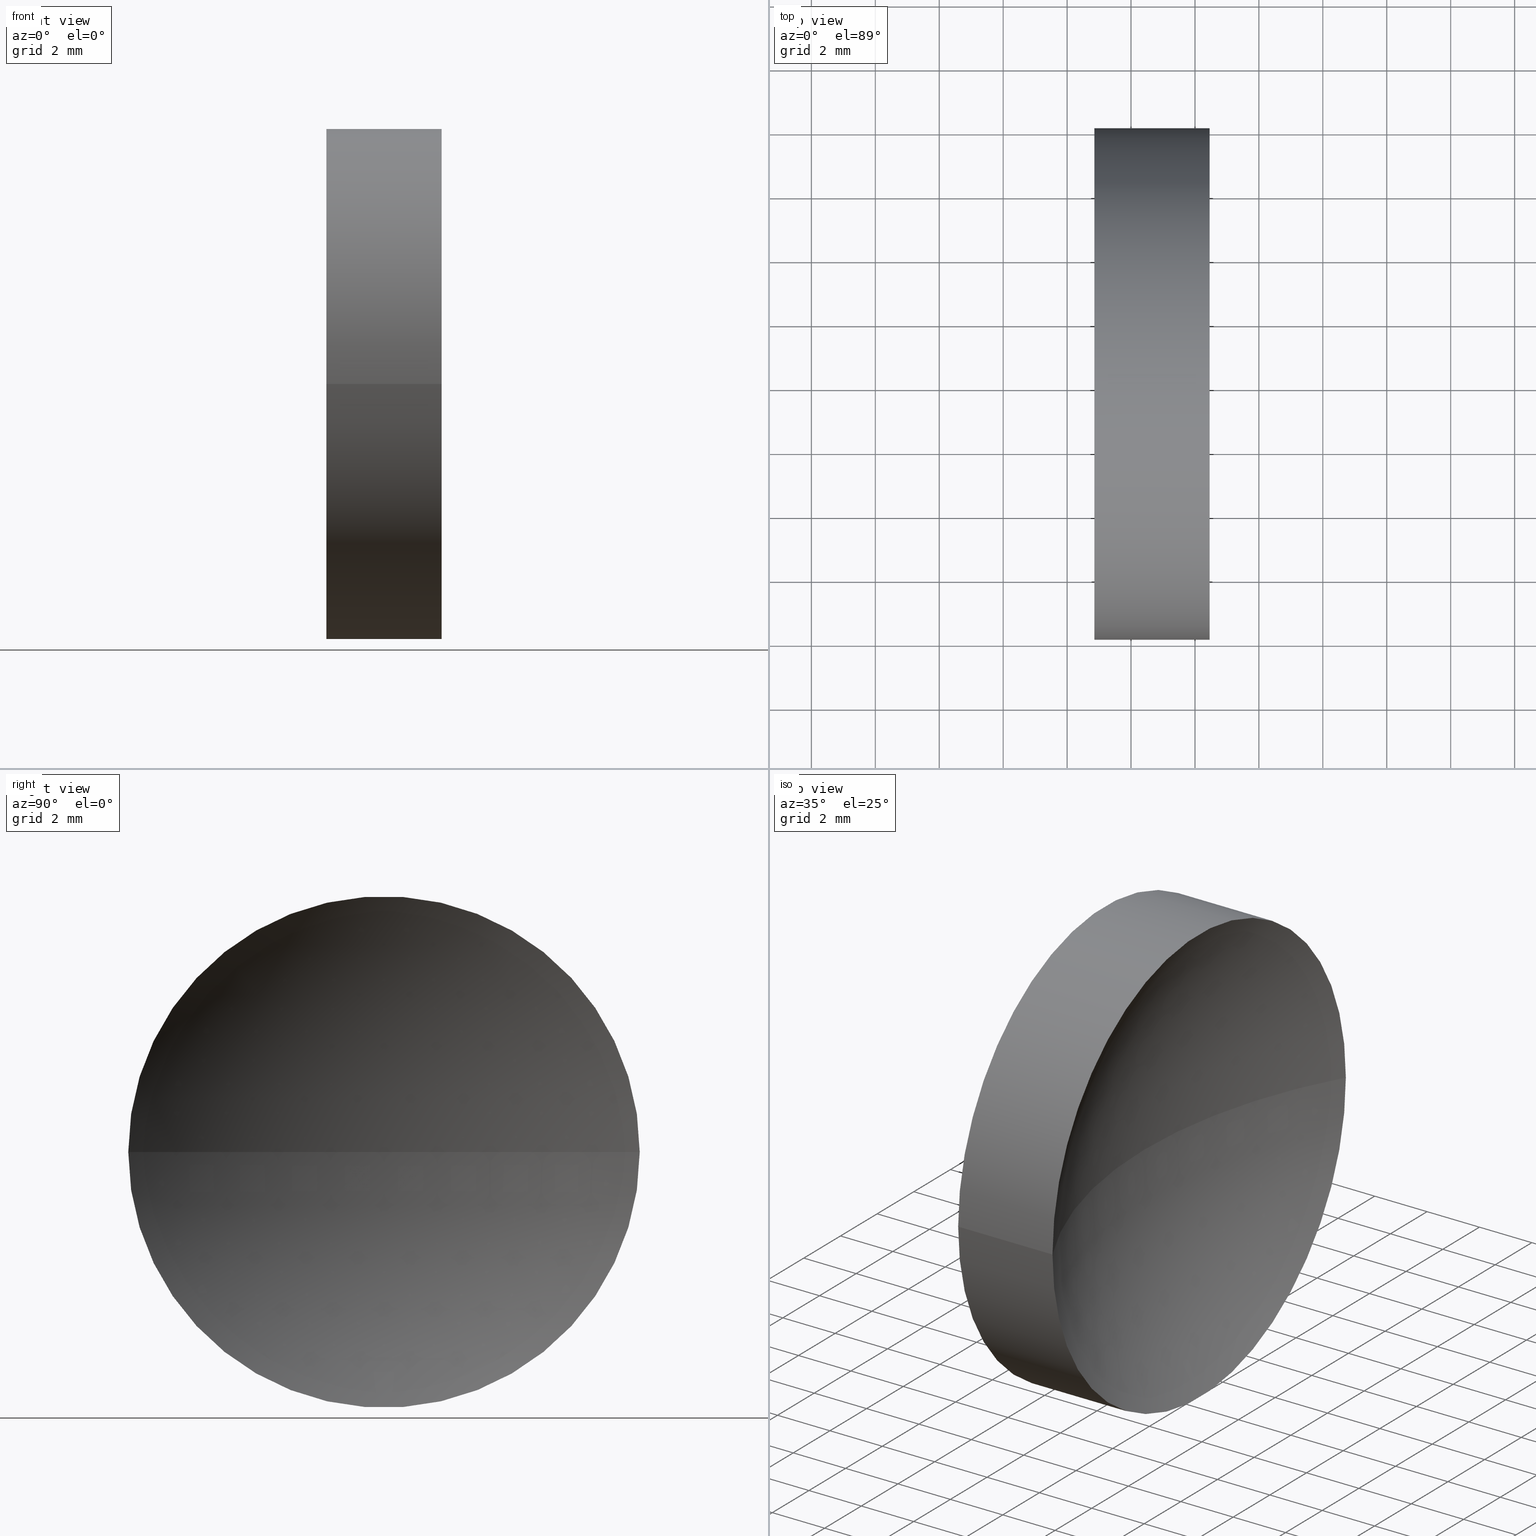
[diagram: canonical four-view strip — front | top / right | iso, engineering-drawing reading convention]
A machine part, canonical four-view strip (front | top / right | iso — engineering-drawing reading convention). The complete STEP part file that produces these views, byte-faithful:
ISO-10303-21;
HEADER;
FILE_DESCRIPTION (( 'STEP AP214' ),
    '1' );
FILE_NAME ('120141.STEP',
    '2019-06-20T01:14:32',
    ( '' ),
    ( '' ),
    'SwSTEP 2.0',
    'SolidWorks 2016',
    '' );
FILE_SCHEMA (( 'AUTOMOTIVE_DESIGN' ));
ENDSEC;

DATA;
#1 = EDGE_CURVE ( 'NONE', #91, #118, #116, .T. ) ;
#2 = PRODUCT_DEFINITION_FORMATION_WITH_SPECIFIED_SOURCE ( '�κ�', '', #19, .NOT_KNOWN. ) ;
#3 = CIRCLE ( 'NONE', #92, 8.000000000000003600 ) ;
#4 = PRESENTATION_LAYER_ASSIGNMENT (  '', '', ( #52 ) ) ;
#5 = CYLINDRICAL_SURFACE ( 'NONE', #82, 8.000000000000000000 ) ;
#6 = EDGE_LOOP ( 'NONE', ( #73, #148, #156 ) ) ;
#7 = MECHANICAL_DESIGN_GEOMETRIC_PRESENTATION_REPRESENTATION (  '', ( #52 ), #23 ) ;
#8 = DIRECTION ( 'NONE',  ( -1.000000000000000000, 4.058245434298766700E-016, -0.0000000000000000000 ) ) ;
#9 = APPLICATION_CONTEXT ( 'automotive_design' ) ;
#10 =( NAMED_UNIT ( * ) SI_UNIT ( $, .STERADIAN. ) SOLID_ANGLE_UNIT ( ) );
#11 = APPLICATION_CONTEXT ( 'automotive_design' ) ;
#12 = CARTESIAN_POINT ( 'NONE',  ( 48.45710460198292000, 26.06225218280608000, 0.0000000000000000000 ) ) ;
#13 = CARTESIAN_POINT ( 'NONE',  ( 44.85442262622448300, 34.06225218280608400, 9.797174393178827600E-016 ) ) ;
#14 = UNCERTAINTY_MEASURE_WITH_UNIT (LENGTH_MEASURE( 1.000000000000000100E-005 ), #133, 'distance_accuracy_value', 'NONE');
#15 = FACE_OUTER_BOUND ( 'NONE', #75, .T. ) ;
#16 = SURFACE_STYLE_FILL_AREA ( #58 ) ;
#17 = EDGE_LOOP ( 'NONE', ( #99, #48 ) ) ;
#18 = AXIS2_PLACEMENT_3D ( 'NONE', #106, #37, #122 ) ;
#19 = PRODUCT ( '120141', '120141', '', ( #32 ) ) ;
#20 = CARTESIAN_POINT ( 'NONE',  ( 62.62442262622448700, 26.06225218280609100, 0.0000000000000000000 ) ) ;
#21 = SURFACE_SIDE_STYLE ('',( #16 ) ) ;
#22 = DIRECTION ( 'NONE',  ( 0.0000000000000000000, 0.0000000000000000000, 1.000000000000000000 ) ) ;
#23 =( GEOMETRIC_REPRESENTATION_CONTEXT ( 3 ) GLOBAL_UNCERTAINTY_ASSIGNED_CONTEXT ( ( #14 ) ) GLOBAL_UNIT_ASSIGNED_CONTEXT ( ( #133, #65, #10 ) ) REPRESENTATION_CONTEXT ( 'NONE', 'WORKASPACE' ) );
#24 = VERTEX_POINT ( 'NONE', #94 ) ;
#25 = DIRECTION ( 'NONE',  ( 0.0000000000000000000, -1.000000000000000000, 0.0000000000000000000 ) ) ;
#26 = CARTESIAN_POINT ( 'NONE',  ( 62.62442262622448700, 26.06225218280609100, 0.0000000000000000000 ) ) ;
#27 = FACE_OUTER_BOUND ( 'NONE', #61, .T. ) ;
#28 = MANIFOLD_SOLID_BREP ( '��ת1', #104 ) ;
#29 = PRODUCT_DEFINITION_SHAPE ( 'NONE', 'NONE',  #44 ) ;
#30 = EDGE_CURVE ( 'NONE', #78, #125, #141, .T. ) ;
#31 = ORIENTED_EDGE ( 'NONE', *, *, #102, .F. ) ;
#32 = PRODUCT_CONTEXT ( 'NONE', #11, 'mechanical' ) ;
#33 = CARTESIAN_POINT ( 'NONE',  ( 62.62442262622448700, 26.06225218280609100, 0.0000000000000000000 ) ) ;
#34 = ORIENTED_EDGE ( 'NONE', *, *, #90, .T. ) ;
#35 = AXIS2_PLACEMENT_3D ( 'NONE', #20, #64, #135 ) ;
#36 = ADVANCED_FACE ( 'NONE', ( #71 ), #80, .F. ) ;
#37 = DIRECTION ( 'NONE',  ( -1.000000000000000000, 4.058245434298766700E-016, -0.0000000000000000000 ) ) ;
#38 = CARTESIAN_POINT ( 'NONE',  ( 0.0000000000000000000, 0.0000000000000000000, 0.0000000000000000000 ) ) ;
#39 = DIRECTION ( 'NONE',  ( 4.058245434298766700E-016, 1.000000000000000000, 0.0000000000000000000 ) ) ;
#40 = CARTESIAN_POINT ( 'NONE',  ( 48.45710460198292000, 34.06225218280609100, 9.797174393178819700E-016 ) ) ;
#41 = SPHERICAL_SURFACE ( 'NONE', #35, 16.27000000000000000 ) ;
#42 = ADVANCED_FACE ( 'NONE', ( #53 ), #41, .F. ) ;
#43 = AXIS2_PLACEMENT_3D ( 'NONE', #88, #126, #68 ) ;
#44 = PRODUCT_DEFINITION ( 'δ֪', '', #2, #66 ) ;
#45 =( NAMED_UNIT ( * ) PLANE_ANGLE_UNIT ( ) SI_UNIT ( $, .RADIAN. ) );
#46 = DIRECTION ( 'NONE',  ( -4.969917281268344600E-032, -1.224646799147353200E-016, 1.000000000000000000 ) ) ;
#47 = CARTESIAN_POINT ( 'NONE',  ( 43.01195023616492100, 34.06225218280608400, 9.797174393178827600E-016 ) ) ;
#48 = ORIENTED_EDGE ( 'NONE', *, *, #30, .T. ) ;
#49 = EDGE_CURVE ( 'NONE', #125, #78, #129, .T. ) ;
#50 = ORIENTED_EDGE ( 'NONE', *, *, #30, .F. ) ;
#51 = ORIENTED_EDGE ( 'NONE', *, *, #162, .T. ) ;
#52 = STYLED_ITEM ( 'NONE', ( #76 ), #28 ) ;
#53 = FACE_OUTER_BOUND ( 'NONE', #6, .T. ) ;
#54 = ADVANCED_BREP_SHAPE_REPRESENTATION ( '120141', ( #28, #149 ), #100 ) ;
#55 =( NAMED_UNIT ( * ) SI_UNIT ( $, .STERADIAN. ) SOLID_ANGLE_UNIT ( ) );
#56 = SURFACE_STYLE_USAGE ( .BOTH. , #21 ) ;
#57 =( NAMED_UNIT ( * ) SI_UNIT ( $, .STERADIAN. ) SOLID_ANGLE_UNIT ( ) );
#58 = FILL_AREA_STYLE ('',( #81 ) ) ;
#59 = DIRECTION ( 'NONE',  ( -1.000000000000000000, 4.058245434298766700E-016, -0.0000000000000000000 ) ) ;
#60 = CYLINDRICAL_SURFACE ( 'NONE', #93, 8.000000000000000000 ) ;
#61 = EDGE_LOOP ( 'NONE', ( #110, #119, #103, #50 ) ) ;
#62 = AXIS2_PLACEMENT_3D ( 'NONE', #69, #67, #25 ) ;
#63 = LINE ( 'NONE', #98, #120 ) ;
#64 = DIRECTION ( 'NONE',  ( 0.0000000000000000000, 0.0000000000000000000, 1.000000000000000000 ) ) ;
#65 =( NAMED_UNIT ( * ) PLANE_ANGLE_UNIT ( ) SI_UNIT ( $, .RADIAN. ) );
#66 = PRODUCT_DEFINITION_CONTEXT ( 'detailed design', #9, 'design' ) ;
#67 = DIRECTION ( 'NONE',  ( -1.000000000000000000, 4.058245434298766700E-016, -0.0000000000000000000 ) ) ;
#68 = DIRECTION ( 'NONE',  ( 0.0000000000000000000, -1.000000000000000000, 0.0000000000000000000 ) ) ;
#69 = CARTESIAN_POINT ( 'NONE',  ( 48.45710460198292000, 26.06225218280608000, 0.0000000000000000000 ) ) ;
#70 = DIRECTION ( 'NONE',  ( 0.0000000000000000000, -0.0000000000000000000, -1.000000000000000000 ) ) ;
#71 = FACE_OUTER_BOUND ( 'NONE', #17, .T. ) ;
#72 = ORIENTED_EDGE ( 'NONE', *, *, #157, .F. ) ;
#73 = ORIENTED_EDGE ( 'NONE', *, *, #1, .F. ) ;
#74 = PRODUCT_RELATED_PRODUCT_CATEGORY ( 'part', '', ( #19 ) ) ;
#75 = EDGE_LOOP ( 'NONE', ( #72, #124, #31 ) ) ;
#76 = PRESENTATION_STYLE_ASSIGNMENT (( #56 ) ) ;
#77 = AXIS2_PLACEMENT_3D ( 'NONE', #26, #70, #109 ) ;
#78 = VERTEX_POINT ( 'NONE', #13 ) ;
#79 =( GEOMETRIC_REPRESENTATION_CONTEXT ( 3 ) GLOBAL_UNCERTAINTY_ASSIGNED_CONTEXT ( ( #114 ) ) GLOBAL_UNIT_ASSIGNED_CONTEXT ( ( #165, #45, #55 ) ) REPRESENTATION_CONTEXT ( 'NONE', 'WORKASPACE' ) );
#80 = PLANE ( 'NONE',  #96 ) ;
#81 = FILL_AREA_STYLE_COLOUR ( '', #158 ) ;
#82 = AXIS2_PLACEMENT_3D ( 'NONE', #101, #130, #111 ) ;
#83 = SURFACE_SIDE_STYLE ('',( #115 ) ) ;
#84 = DIRECTION ( 'NONE',  ( 0.0000000000000000000, -1.000000000000000000, -1.224646799147353200E-016 ) ) ;
#85 = ORIENTED_EDGE ( 'NONE', *, *, #49, .F. ) ;
#86 = ORIENTED_EDGE ( 'NONE', *, *, #128, .F. ) ;
#87 = DIRECTION ( 'NONE',  ( -1.000000000000000000, 4.058245434298766700E-016, -0.0000000000000000000 ) ) ;
#88 = CARTESIAN_POINT ( 'NONE',  ( 62.62442262622448700, 26.06225218280609100, 0.0000000000000000000 ) ) ;
#89 = DIRECTION ( 'NONE',  ( -1.000000000000000000, 4.058245434298766700E-016, -0.0000000000000000000 ) ) ;
#90 = EDGE_CURVE ( 'NONE', #91, #78, #113, .T. ) ;
#91 = VERTEX_POINT ( 'NONE', #40 ) ;
#92 = AXIS2_PLACEMENT_3D ( 'NONE', #12, #87, #160 ) ;
#93 = AXIS2_PLACEMENT_3D ( 'NONE', #140, #8, #112 ) ;
#94 = CARTESIAN_POINT ( 'NONE',  ( 48.45710460198292000, 18.06225218280608400, 0.0000000000000000000 ) ) ;
#95 = VECTOR ( 'NONE', #59, 1000.000000000000000 ) ;
#96 = AXIS2_PLACEMENT_3D ( 'NONE', #134, #153, #39 ) ;
#97 = FACE_OUTER_BOUND ( 'NONE', #142, .T. ) ;
#98 = CARTESIAN_POINT ( 'NONE',  ( 43.01195023616492100, 18.06225218280608400, 0.0000000000000000000 ) ) ;
#99 = ORIENTED_EDGE ( 'NONE', *, *, #49, .T. ) ;
#100 =( GEOMETRIC_REPRESENTATION_CONTEXT ( 3 ) GLOBAL_UNCERTAINTY_ASSIGNED_CONTEXT ( ( #151 ) ) GLOBAL_UNIT_ASSIGNED_CONTEXT ( ( #154, #105, #57 ) ) REPRESENTATION_CONTEXT ( 'NONE', 'WORKASPACE' ) );
#101 = CARTESIAN_POINT ( 'NONE',  ( 43.01195023616492100, 26.06225218280608400, 0.0000000000000000000 ) ) ;
#102 = EDGE_CURVE ( 'NONE', #24, #118, #143, .T. ) ;
#103 = ORIENTED_EDGE ( 'NONE', *, *, #128, .T. ) ;
#104 = CLOSED_SHELL ( 'NONE', ( #147, #127, #42, #145, #36 ) ) ;
#105 =( NAMED_UNIT ( * ) PLANE_ANGLE_UNIT ( ) SI_UNIT ( $, .RADIAN. ) );
#106 = CARTESIAN_POINT ( 'NONE',  ( 44.85442262622448300, 26.06225218280608400, 0.0000000000000000000 ) ) ;
#107 = PRESENTATION_STYLE_ASSIGNMENT (( #136 ) ) ;
#108 = APPLICATION_PROTOCOL_DEFINITION ( 'draft international standard', 'automotive_design', 1998, #11 ) ;
#109 = DIRECTION ( 'NONE',  ( -1.000000000000000000, 0.0000000000000000000, 0.0000000000000000000 ) ) ;
#110 = ORIENTED_EDGE ( 'NONE', *, *, #90, .F. ) ;
#111 = DIRECTION ( 'NONE',  ( 0.0000000000000000000, -1.000000000000000000, 0.0000000000000000000 ) ) ;
#112 = DIRECTION ( 'NONE',  ( 0.0000000000000000000, -1.000000000000000000, 0.0000000000000000000 ) ) ;
#113 = LINE ( 'NONE', #47, #95 ) ;
#114 = UNCERTAINTY_MEASURE_WITH_UNIT (LENGTH_MEASURE( 1.000000000000000100E-005 ), #165, 'distance_accuracy_value', 'NONE');
#115 = SURFACE_STYLE_FILL_AREA ( #123 ) ;
#116 = CIRCLE ( 'NONE', #150, 16.27000000000000000 ) ;
#117 = STYLED_ITEM ( 'NONE', ( #107 ), #54 ) ;
#118 = VERTEX_POINT ( 'NONE', #137 ) ;
#119 = ORIENTED_EDGE ( 'NONE', *, *, #157, .T. ) ;
#120 = VECTOR ( 'NONE', #89, 1000.000000000000000 ) ;
#121 = APPLICATION_PROTOCOL_DEFINITION ( 'draft international standard', 'automotive_design', 1998, #9 ) ;
#122 = DIRECTION ( 'NONE',  ( 0.0000000000000000000, -1.000000000000000000, 0.0000000000000000000 ) ) ;
#123 = FILL_AREA_STYLE ('',( #152 ) ) ;
#124 = ORIENTED_EDGE ( 'NONE', *, *, #1, .T. ) ;
#125 = VERTEX_POINT ( 'NONE', #161 ) ;
#126 = DIRECTION ( 'NONE',  ( 0.0000000000000000000, 0.0000000000000000000, 1.000000000000000000 ) ) ;
#127 = ADVANCED_FACE ( 'NONE', ( #15 ), #132, .F. ) ;
#128 = EDGE_CURVE ( 'NONE', #24, #125, #63, .T. ) ;
#129 = CIRCLE ( 'NONE', #164, 8.000000000000000000 ) ;
#130 = DIRECTION ( 'NONE',  ( -1.000000000000000000, 4.058245434298766700E-016, -0.0000000000000000000 ) ) ;
#131 = CIRCLE ( 'NONE', #62, 8.000000000000003600 ) ;
#132 = SPHERICAL_SURFACE ( 'NONE', #43, 16.27000000000000000 ) ;
#133 =( LENGTH_UNIT ( ) NAMED_UNIT ( * ) SI_UNIT ( .MILLI., .METRE. ) );
#134 = CARTESIAN_POINT ( 'NONE',  ( 44.85442262622448300, 26.06225218280608400, 0.0000000000000000000 ) ) ;
#135 = DIRECTION ( 'NONE',  ( 0.0000000000000000000, -1.000000000000000000, 0.0000000000000000000 ) ) ;
#136 = SURFACE_STYLE_USAGE ( .BOTH. , #83 ) ;
#137 = CARTESIAN_POINT ( 'NONE',  ( 46.35442262622449100, 26.06225218280609800, 0.0000000000000000000 ) ) ;
#138 = DIRECTION ( 'NONE',  ( 1.000000000000000000, 0.0000000000000000000, 0.0000000000000000000 ) ) ;
#139 = CARTESIAN_POINT ( 'NONE',  ( 44.85442262622448300, 26.06225218280608400, 0.0000000000000000000 ) ) ;
#140 = CARTESIAN_POINT ( 'NONE',  ( 43.01195023616492100, 26.06225218280608400, 0.0000000000000000000 ) ) ;
#141 = CIRCLE ( 'NONE', #18, 8.000000000000000000 ) ;
#142 = EDGE_LOOP ( 'NONE', ( #51, #34, #85, #86 ) ) ;
#143 = CIRCLE ( 'NONE', #77, 16.27000000000000000 ) ;
#144 = SHAPE_DEFINITION_REPRESENTATION ( #29, #54 ) ;
#145 = ADVANCED_FACE ( 'NONE', ( #27 ), #5, .T. ) ;
#146 = COLOUR_RGB ( '',1.000000000000000000, 1.000000000000000000, 1.000000000000000000 ) ;
#147 = ADVANCED_FACE ( 'NONE', ( #97 ), #60, .T. ) ;
#148 = ORIENTED_EDGE ( 'NONE', *, *, #162, .F. ) ;
#149 = AXIS2_PLACEMENT_3D ( 'NONE', #38, #22, #138 ) ;
#150 = AXIS2_PLACEMENT_3D ( 'NONE', #33, #46, #84 ) ;
#151 = UNCERTAINTY_MEASURE_WITH_UNIT (LENGTH_MEASURE( 1.000000000000000100E-005 ), #154, 'distance_accuracy_value', 'NONE');
#152 = FILL_AREA_STYLE_COLOUR ( '', #146 ) ;
#153 = DIRECTION ( 'NONE',  ( 1.000000000000000000, -4.058245434298766700E-016, 0.0000000000000000000 ) ) ;
#154 =( LENGTH_UNIT ( ) NAMED_UNIT ( * ) SI_UNIT ( .MILLI., .METRE. ) );
#155 = PRESENTATION_LAYER_ASSIGNMENT (  '', '', ( #117 ) ) ;
#156 = ORIENTED_EDGE ( 'NONE', *, *, #102, .T. ) ;
#157 = EDGE_CURVE ( 'NONE', #91, #24, #131, .T. ) ;
#158 = COLOUR_RGB ( '',1.000000000000000000, 1.000000000000000000, 1.000000000000000000 ) ;
#159 = MECHANICAL_DESIGN_GEOMETRIC_PRESENTATION_REPRESENTATION (  '', ( #117 ), #79 ) ;
#160 = DIRECTION ( 'NONE',  ( 0.0000000000000000000, -1.000000000000000000, 0.0000000000000000000 ) ) ;
#161 = CARTESIAN_POINT ( 'NONE',  ( 44.85442262622448300, 18.06225218280608400, 0.0000000000000000000 ) ) ;
#162 = EDGE_CURVE ( 'NONE', #24, #91, #3, .T. ) ;
#163 = DIRECTION ( 'NONE',  ( -1.000000000000000000, 4.058245434298766700E-016, -0.0000000000000000000 ) ) ;
#164 = AXIS2_PLACEMENT_3D ( 'NONE', #139, #163, #166 ) ;
#165 =( LENGTH_UNIT ( ) NAMED_UNIT ( * ) SI_UNIT ( .MILLI., .METRE. ) );
#166 = DIRECTION ( 'NONE',  ( 0.0000000000000000000, -1.000000000000000000, 0.0000000000000000000 ) ) ;
ENDSEC;
END-ISO-10303-21;
